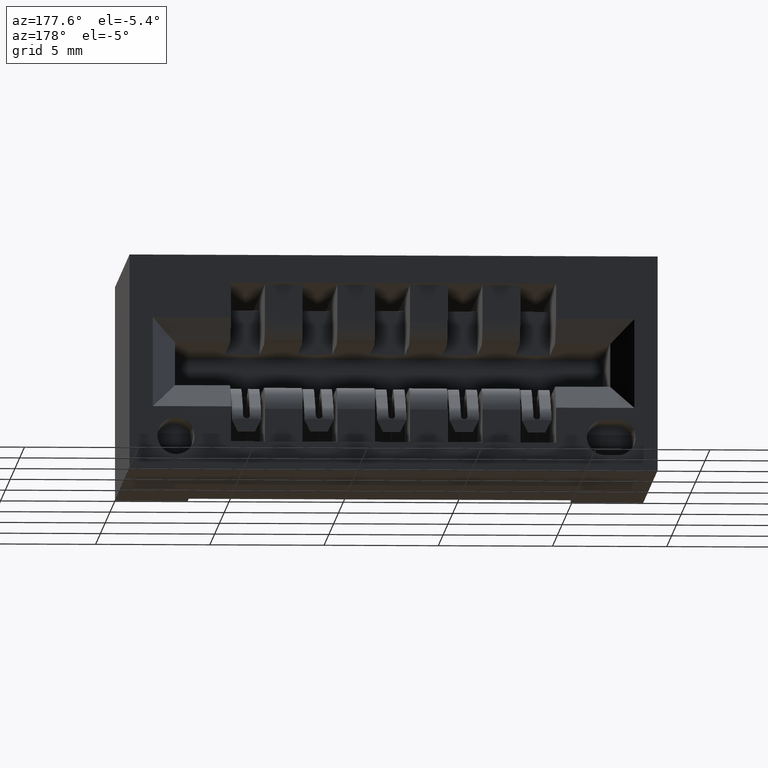
[diagram: clean part render]
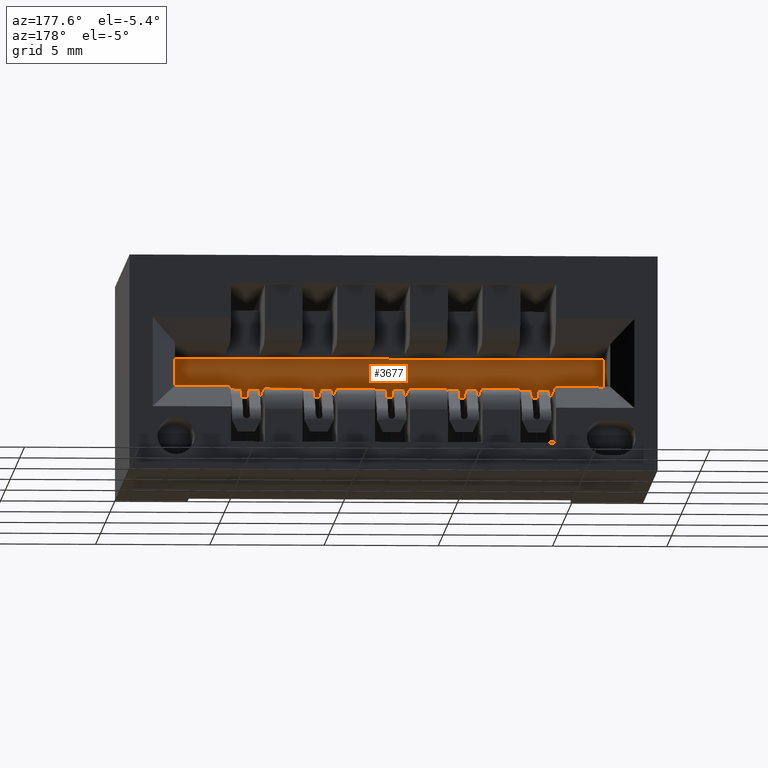
[diagram: same view with one face highlighted and labeled with its STEP entity id]
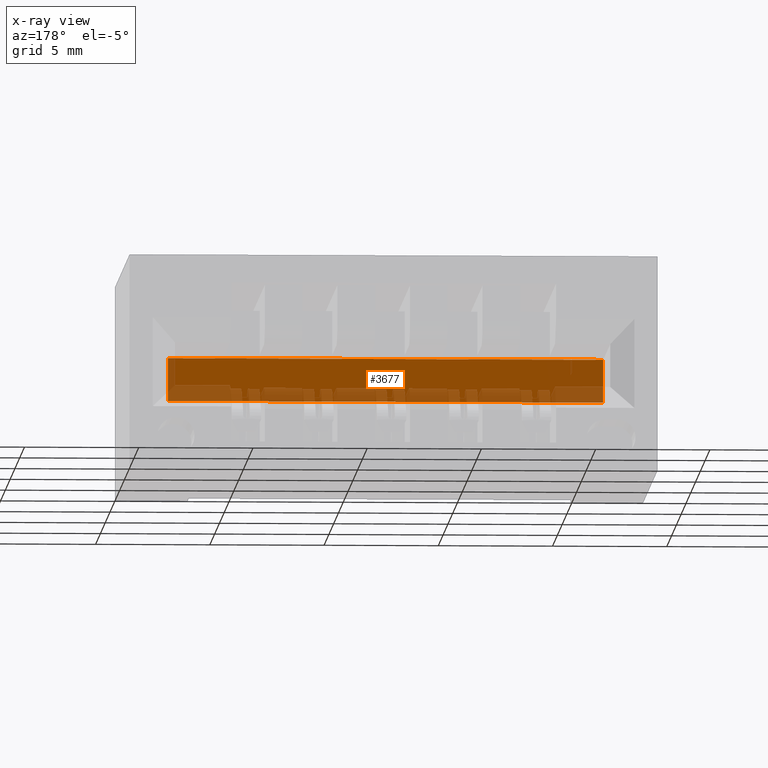
[diagram: x-ray of the same camera — body ghosted, the highlighted face saturated]
A machine part, auxiliary view. The second image highlights one B-rep face of the part: STEP entity #3677.
The next image is the same camera in x-ray: the body ghosted, the highlighted face saturated — about 31% of this face is hidden behind the body in this view.
In plain terms, the highlighted planar face has unit normal (0, 1, 0).
Its self-contained STEP definition (entity closure, byte-faithful):
#393 = ORIENTED_EDGE ( 'NONE', *, *, #5635, .T. ) ;
#560 = FACE_OUTER_BOUND ( 'NONE', #5275, .T. ) ;
#664 = DIRECTION ( 'NONE',  ( -0.0000000000000000000, -0.0000000000000000000, -1.000000000000000000 ) ) ;
#829 = CARTESIAN_POINT ( 'NONE',  ( 1.092500000000000249, 0.2699999999999999067, -0.2220000000000000862 ) ) ;
#1083 = CARTESIAN_POINT ( 'NONE',  ( 0.3425000000000000266, 0.2699999999999999067, -0.1480000000000000759 ) ) ;
#1480 = CARTESIAN_POINT ( 'NONE',  ( 0.3425000000000000266, 0.2699999999999999067, -0.2220000000000000862 ) ) ;
#1588 = CARTESIAN_POINT ( 'NONE',  ( 1.092500000000000249, 0.2699999999999999067, -0.2220000000000000862 ) ) ;
#1736 = EDGE_CURVE ( 'NONE', #7785, #5932, #6258, .T. ) ;
#2205 = CARTESIAN_POINT ( 'NONE',  ( 1.092500000000000249, 0.2699999999999999067, -0.1480000000000000759 ) ) ;
#2250 = DIRECTION ( 'NONE',  ( 0.0000000000000000000, -0.0000000000000000000, 1.000000000000000000 ) ) ;
#2294 = VECTOR ( 'NONE', #7562, 39.37007874015748143 ) ;
#2469 = CARTESIAN_POINT ( 'NONE',  ( 0.3425000000000000266, 0.2699999999999999067, -0.1480000000000000759 ) ) ;
#2557 = EDGE_CURVE ( 'NONE', #5039, #7785, #5751, .T. ) ;
#2861 = CARTESIAN_POINT ( 'NONE',  ( 0.3425000000000000266, 0.2699999999999999067, -0.1480000000000000759 ) ) ;
#3254 = LINE ( 'NONE', #829, #6714 ) ;
#3619 = ORIENTED_EDGE ( 'NONE', *, *, #2557, .T. ) ;
#3677 = ADVANCED_FACE ( 'NONE', ( #560 ), #7908, .T. ) ;
#3927 = CARTESIAN_POINT ( 'NONE',  ( 0.3425000000000000266, 0.2699999999999999067, -0.2220000000000000862 ) ) ;
#3930 = CARTESIAN_POINT ( 'NONE',  ( 0.3425000000000000266, 0.2699999999999999067, -0.2220000000000000862 ) ) ;
#4121 = VECTOR ( 'NONE', #6883, 39.37007874015748143 ) ;
#4350 = LINE ( 'NONE', #3930, #2294 ) ;
#4872 = ORIENTED_EDGE ( 'NONE', *, *, #1736, .T. ) ;
#5039 = VERTEX_POINT ( 'NONE', #3927 ) ;
#5195 = DIRECTION ( 'NONE',  ( 0.0000000000000000000, 0.0000000000000000000, 1.000000000000000000 ) ) ;
#5275 = EDGE_LOOP ( 'NONE', ( #4872, #393, #6521, #3619 ) ) ;
#5320 = DIRECTION ( 'NONE',  ( 0.0000000000000000000, 1.000000000000000000, 0.0000000000000000000 ) ) ;
#5322 = VERTEX_POINT ( 'NONE', #1588 ) ;
#5635 = EDGE_CURVE ( 'NONE', #5932, #5322, #3254, .T. ) ;
#5751 = LINE ( 'NONE', #1480, #5915 ) ;
#5915 = VECTOR ( 'NONE', #5195, 39.37007874015748143 ) ;
#5932 = VERTEX_POINT ( 'NONE', #2205 ) ;
#6186 = AXIS2_PLACEMENT_3D ( 'NONE', #2861, #5320, #2250 ) ;
#6258 = LINE ( 'NONE', #2469, #4121 ) ;
#6521 = ORIENTED_EDGE ( 'NONE', *, *, #6861, .T. ) ;
#6714 = VECTOR ( 'NONE', #664, 39.37007874015748143 ) ;
#6861 = EDGE_CURVE ( 'NONE', #5322, #5039, #4350, .T. ) ;
#6883 = DIRECTION ( 'NONE',  ( 1.000000000000000000, 0.0000000000000000000, 0.0000000000000000000 ) ) ;
#7562 = DIRECTION ( 'NONE',  ( -1.000000000000000000, -0.0000000000000000000, -0.0000000000000000000 ) ) ;
#7785 = VERTEX_POINT ( 'NONE', #1083 ) ;
#7908 = PLANE ( 'NONE',  #6186 ) ;